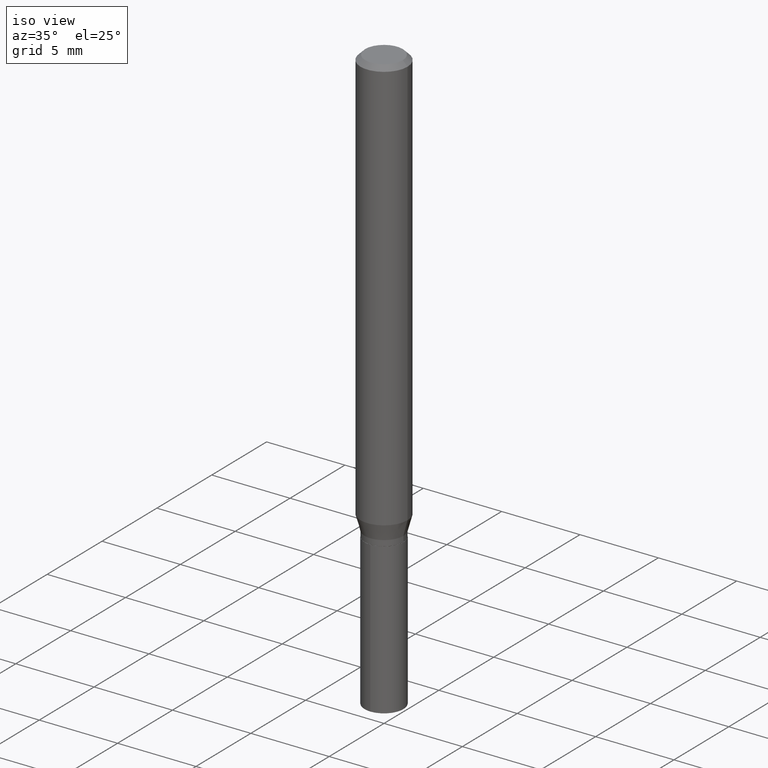
[diagram: clean part render]
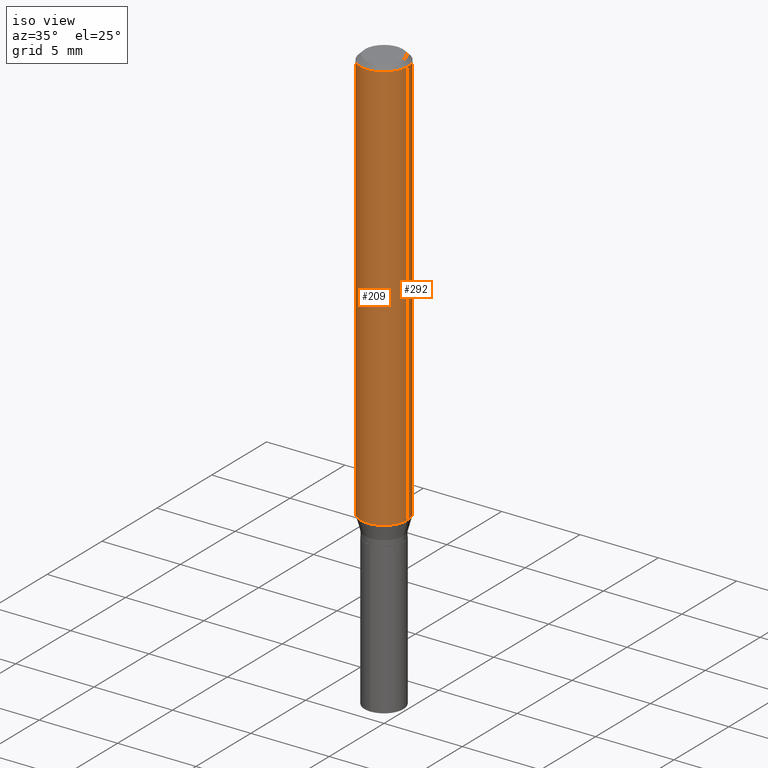
[diagram: same view with one multi-face feature highlighted, each face labeled with its STEP entity id]
A machine part, iso view. The highlighted faces form ONE feature: a constant-radius fillet chain: 2 tangent blend faces with common blend radius 1.4999 mm. The faces share edges in the B-rep.
Their STEP definitions:
[1] entity #209 (Cylinder):
#5 = CARTESIAN_POINT ( 'NONE',  ( 0.05905000000000013016, -4.049233189994112678E-15, -1.041646479222418487 ) ) ;
#12 = EDGE_CURVE ( 'NONE', #253, #87, #315, .T. ) ;
#13 = CARTESIAN_POINT ( 'NONE',  ( 2.547313972010998166E-29, -3.636889243876738547E-15, -1.041646479222418487 ) ) ;
#16 = DIRECTION ( 'NONE',  ( -2.445468806185136597E-29, 3.491481338843145583E-15, 1.000000000000000000 ) ) ;
#38 = CARTESIAN_POINT ( 'NONE',  ( -0.05904999999999999832, -1.419486333777897856E-15, -0.01181000000000006871 ) ) ;
#41 = DIRECTION ( 'NONE',  ( 1.000000000000000000, -6.982962677686266711E-15, 0.000000000000000000 ) ) ;
#50 = DIRECTION ( 'NONE',  ( -2.445468806185136877E-29, 3.491481338843145188E-15, 1.000000000000000000 ) ) ;
#72 = CYLINDRICAL_SURFACE ( 'NONE', #170, 0.05905000000000006771 ) ;
#79 = CARTESIAN_POINT ( 'NONE',  ( 2.888098660104663328E-31, -4.123439461173779030E-17, -0.01181000000000006871 ) ) ;
#87 = VERTEX_POINT ( 'NONE', #385 ) ;
#96 = EDGE_CURVE ( 'NONE', #402, #87, #360, .T. ) ;
#99 = CARTESIAN_POINT ( 'NONE',  ( 0.000000000000000000, 0.000000000000000000, 0.000000000000000000 ) ) ;
#120 = ORIENTED_EDGE ( 'NONE', *, *, #96, .T. ) ;
#125 = CARTESIAN_POINT ( 'NONE',  ( -0.05905000000000006771, 4.195754854663396409E-16, -2.904631170795525045E-30 ) ) ;
#136 = DIRECTION ( 'NONE',  ( -2.445468806185136597E-29, 3.491481338843145583E-15, 1.000000000000000000 ) ) ;
#139 = ORIENTED_EDGE ( 'NONE', *, *, #439, .F. ) ;
#158 = EDGE_CURVE ( 'NONE', #232, #402, #451, .T. ) ;
#162 = DIRECTION ( 'NONE',  ( 1.000000000000000000, -6.982962677686265133E-15, 0.000000000000000000 ) ) ;
#170 = AXIS2_PLACEMENT_3D ( 'NONE', #99, #136, #475 ) ;
#209 = ADVANCED_FACE ( 'NONE', ( #296 ), #72, .T. ) ;
#226 = DIRECTION ( 'NONE',  ( -2.445468806185136597E-29, 3.491481338843145583E-15, 1.000000000000000000 ) ) ;
#232 = VERTEX_POINT ( 'NONE', #364 ) ;
#253 = VERTEX_POINT ( 'NONE', #38 ) ;
#271 = AXIS2_PLACEMENT_3D ( 'NONE', #79, #226, #41 ) ;
#295 = ORIENTED_EDGE ( 'NONE', *, *, #12, .F. ) ;
#296 = FACE_OUTER_BOUND ( 'NONE', #403, .T. ) ;
#298 = AXIS2_PLACEMENT_3D ( 'NONE', #13, #16, #162 ) ;
#300 = ORIENTED_EDGE ( 'NONE', *, *, #158, .T. ) ;
#315 = CIRCLE ( 'NONE', #271, 0.05904999999999999832 ) ;
#360 = LINE ( 'NONE', #468, #472 ) ;
#364 = CARTESIAN_POINT ( 'NONE',  ( -0.05905000000000013016, -3.217313758410398265E-15, -1.041646479222418487 ) ) ;
#385 = CARTESIAN_POINT ( 'NONE',  ( 0.05904999999999999832, -4.535783407291118600E-16, -0.01181000000000006871 ) ) ;
#402 = VERTEX_POINT ( 'NONE', #5 ) ;
#403 = EDGE_LOOP ( 'NONE', ( #139, #300, #120, #295 ) ) ;
#417 = DIRECTION ( 'NONE',  ( -2.445468806185136877E-29, 3.491481338843145188E-15, 1.000000000000000000 ) ) ;
#420 = LINE ( 'NONE', #125, #452 ) ;
#439 = EDGE_CURVE ( 'NONE', #232, #253, #420, .T. ) ;
#451 = CIRCLE ( 'NONE', #298, 0.05905000000000013016 ) ;
#452 = VECTOR ( 'NONE', #417, 39.37007874015748143 ) ;
#468 = CARTESIAN_POINT ( 'NONE',  ( 0.05905000000000006771, -4.123439461173745257E-16, 2.879382386107503723E-30 ) ) ;
#472 = VECTOR ( 'NONE', #50, 39.37007874015748143 ) ;
#475 = DIRECTION ( 'NONE',  ( 1.000000000000000000, -6.982962677686266711E-15, 4.876176775795936353E-29 ) ) ;
[2] entity #292 (Cylinder):
#2 = ORIENTED_EDGE ( 'NONE', *, *, #255, .F. ) ;
#5 = CARTESIAN_POINT ( 'NONE',  ( 0.05905000000000013016, -4.049233189994112678E-15, -1.041646479222418487 ) ) ;
#24 = CARTESIAN_POINT ( 'NONE',  ( 2.888098660104663328E-31, -4.123439461173779030E-17, -0.01181000000000006871 ) ) ;
#27 = ORIENTED_EDGE ( 'NONE', *, *, #439, .T. ) ;
#38 = CARTESIAN_POINT ( 'NONE',  ( -0.05904999999999999832, -1.419486333777897856E-15, -0.01181000000000006871 ) ) ;
#50 = DIRECTION ( 'NONE',  ( -2.445468806185136877E-29, 3.491481338843145188E-15, 1.000000000000000000 ) ) ;
#78 = CARTESIAN_POINT ( 'NONE',  ( 2.547313972010998166E-29, -3.636889243876738547E-15, -1.041646479222418487 ) ) ;
#87 = VERTEX_POINT ( 'NONE', #385 ) ;
#96 = EDGE_CURVE ( 'NONE', #402, #87, #360, .T. ) ;
#106 = CIRCLE ( 'NONE', #200, 0.05904999999999999832 ) ;
#116 = EDGE_LOOP ( 'NONE', ( #407, #27, #2, #338 ) ) ;
#125 = CARTESIAN_POINT ( 'NONE',  ( -0.05905000000000006771, 4.195754854663396409E-16, -2.904631170795525045E-30 ) ) ;
#200 = AXIS2_PLACEMENT_3D ( 'NONE', #24, #399, #286 ) ;
#211 = EDGE_CURVE ( 'NONE', #402, #232, #443, .T. ) ;
#222 = DIRECTION ( 'NONE',  ( -2.445468806185136597E-29, 3.491481338843145583E-15, 1.000000000000000000 ) ) ;
#225 = DIRECTION ( 'NONE',  ( -2.445468806185136597E-29, 3.491481338843145583E-15, 1.000000000000000000 ) ) ;
#232 = VERTEX_POINT ( 'NONE', #364 ) ;
#253 = VERTEX_POINT ( 'NONE', #38 ) ;
#255 = EDGE_CURVE ( 'NONE', #87, #253, #106, .T. ) ;
#256 = CYLINDRICAL_SURFACE ( 'NONE', #483, 0.05905000000000006771 ) ;
#259 = FACE_OUTER_BOUND ( 'NONE', #116, .T. ) ;
#286 = DIRECTION ( 'NONE',  ( 1.000000000000000000, -6.982962677686266711E-15, 0.000000000000000000 ) ) ;
#292 = ADVANCED_FACE ( 'NONE', ( #259 ), #256, .T. ) ;
#338 = ORIENTED_EDGE ( 'NONE', *, *, #96, .F. ) ;
#343 = DIRECTION ( 'NONE',  ( 1.000000000000000000, -6.982962677686265133E-15, 0.000000000000000000 ) ) ;
#360 = LINE ( 'NONE', #468, #472 ) ;
#364 = CARTESIAN_POINT ( 'NONE',  ( -0.05905000000000013016, -3.217313758410398265E-15, -1.041646479222418487 ) ) ;
#385 = CARTESIAN_POINT ( 'NONE',  ( 0.05904999999999999832, -4.535783407291118600E-16, -0.01181000000000006871 ) ) ;
#399 = DIRECTION ( 'NONE',  ( -2.445468806185136597E-29, 3.491481338843145583E-15, 1.000000000000000000 ) ) ;
#402 = VERTEX_POINT ( 'NONE', #5 ) ;
#407 = ORIENTED_EDGE ( 'NONE', *, *, #211, .T. ) ;
#417 = DIRECTION ( 'NONE',  ( -2.445468806185136877E-29, 3.491481338843145188E-15, 1.000000000000000000 ) ) ;
#420 = LINE ( 'NONE', #125, #452 ) ;
#428 = AXIS2_PLACEMENT_3D ( 'NONE', #78, #225, #343 ) ;
#439 = EDGE_CURVE ( 'NONE', #232, #253, #420, .T. ) ;
#443 = CIRCLE ( 'NONE', #428, 0.05905000000000013016 ) ;
#450 = CARTESIAN_POINT ( 'NONE',  ( 0.000000000000000000, 0.000000000000000000, 0.000000000000000000 ) ) ;
#452 = VECTOR ( 'NONE', #417, 39.37007874015748143 ) ;
#468 = CARTESIAN_POINT ( 'NONE',  ( 0.05905000000000006771, -4.123439461173745257E-16, 2.879382386107503723E-30 ) ) ;
#472 = VECTOR ( 'NONE', #50, 39.37007874015748143 ) ;
#477 = DIRECTION ( 'NONE',  ( 1.000000000000000000, -6.982962677686266711E-15, 4.876176775795936353E-29 ) ) ;
#483 = AXIS2_PLACEMENT_3D ( 'NONE', #450, #222, #477 ) ;